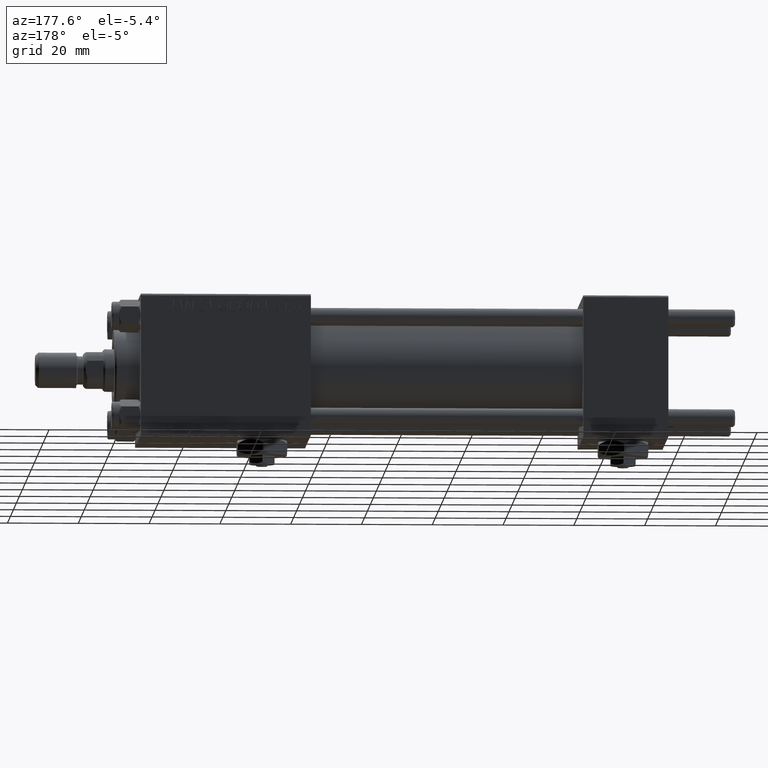
[diagram: clean part render]
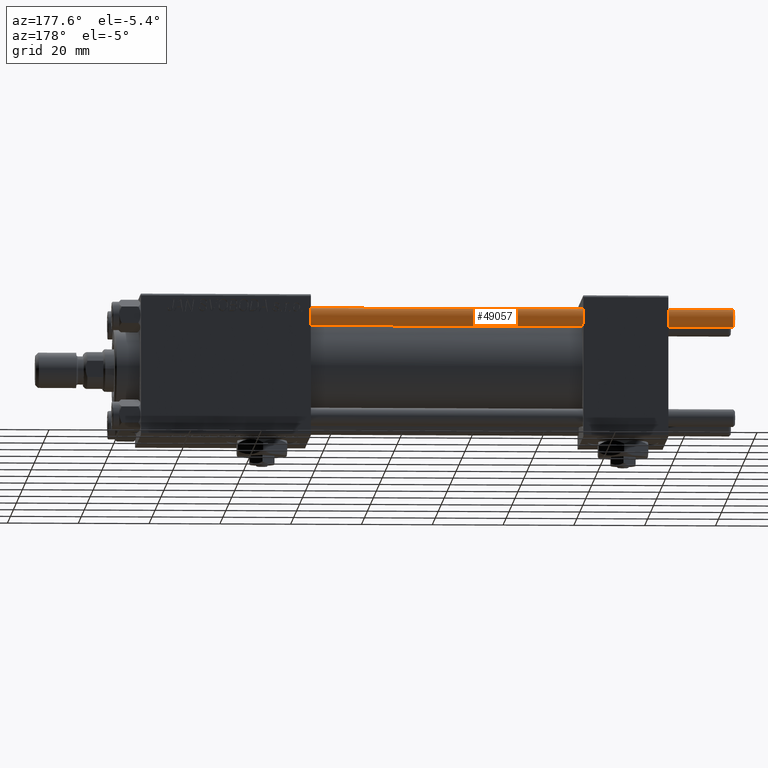
[diagram: same view with one face highlighted and labeled with its STEP entity id]
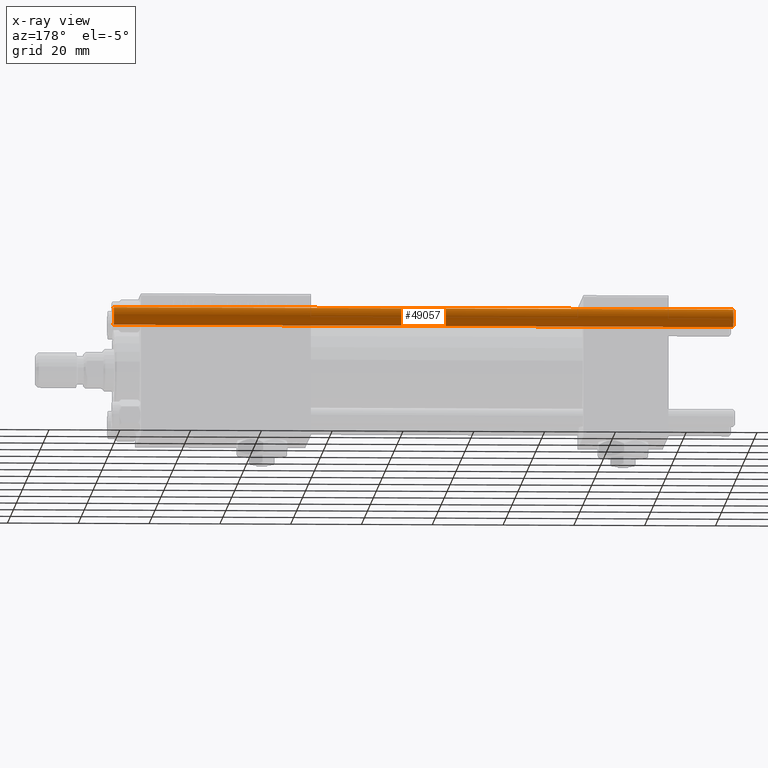
[diagram: x-ray of the same camera — body ghosted, the highlighted face saturated]
A machine part, auxiliary view. The second image highlights one B-rep face of the part: STEP entity #49057.
The next image is the same camera in x-ray: the body ghosted, the highlighted face saturated — about 0% of this face is hidden behind the body in this view.
In plain terms, the highlighted cylindrical surface (edge-blend (fillet) strip) has radius 2.5 mm, axis along (-1, -0, -0).
Its self-contained STEP definition (entity closure, byte-faithful):
#1452 = EDGE_CURVE ( 'NONE', #23607, #36612, #48513, .T. ) ;
#3957 = DIRECTION ( 'NONE',  ( -1.000000000000000000, 0.000000000000000000, 0.000000000000000000 ) ) ;
#7632 = ORIENTED_EDGE ( 'NONE', *, *, #44233, .T. ) ;
#9576 = LINE ( 'NONE', #18292, #18281 ) ;
#12871 = DIRECTION ( 'NONE',  ( 1.000000000000000000, 0.000000000000000000, 0.000000000000000000 ) ) ;
#16009 = DIRECTION ( 'NONE',  ( -0.000000000000000000, -0.000000000000000000, 1.000000000000000000 ) ) ;
#18281 = VECTOR ( 'NONE', #42858, 1000.000000000000000 ) ;
#18292 = CARTESIAN_POINT ( 'NONE',  ( -2.500000000000000000, 0.000000000000000000, 176.0000000000000000 ) ) ;
#18976 = CARTESIAN_POINT ( 'NONE',  ( 2.500000000000000000, 3.061616997868383141E-16, 176.0000000000000000 ) ) ;
#23545 = AXIS2_PLACEMENT_3D ( 'NONE', #48233, #16009, #24459 ) ;
#23607 = VERTEX_POINT ( 'NONE', #41003 ) ;
#24459 = DIRECTION ( 'NONE',  ( 1.000000000000000000, 0.000000000000000000, 0.000000000000000000 ) ) ;
#24542 = CARTESIAN_POINT ( 'NONE',  ( 2.500000000000000000, 3.061616997868383141E-16, 0.5000000000000281997 ) ) ;
#25607 = EDGE_CURVE ( 'NONE', #36612, #40506, #43822, .T. ) ;
#25725 = AXIS2_PLACEMENT_3D ( 'NONE', #37190, #29530, #12871 ) ;
#27005 = ORIENTED_EDGE ( 'NONE', *, *, #36437, .F. ) ;
#27368 = VECTOR ( 'NONE', #27428, 1000.000000000000000 ) ;
#27428 = DIRECTION ( 'NONE',  ( -0.000000000000000000, -0.000000000000000000, -1.000000000000000000 ) ) ;
#28021 = DIRECTION ( 'NONE',  ( -0.000000000000000000, -0.000000000000000000, -1.000000000000000000 ) ) ;
#29530 = DIRECTION ( 'NONE',  ( 0.000000000000000000, 0.000000000000000000, -1.000000000000000000 ) ) ;
#29955 = VERTEX_POINT ( 'NONE', #29982 ) ;
#29982 = CARTESIAN_POINT ( 'NONE',  ( -2.500000000000000000, 0.000000000000000000, 0.5000000000000281997 ) ) ;
#31792 = ORIENTED_EDGE ( 'NONE', *, *, #25607, .T. ) ;
#35948 = FACE_OUTER_BOUND ( 'NONE', #48684, .T. ) ;
#36437 = EDGE_CURVE ( 'NONE', #23607, #29955, #9576, .T. ) ;
#36612 = VERTEX_POINT ( 'NONE', #52078 ) ;
#36864 = ORIENTED_EDGE ( 'NONE', *, *, #1452, .T. ) ;
#37190 = CARTESIAN_POINT ( 'NONE',  ( 0.000000000000000000, 0.000000000000000000, 175.5000000000000000 ) ) ;
#38853 = AXIS2_PLACEMENT_3D ( 'NONE', #52050, #28021, #3957 ) ;
#40506 = VERTEX_POINT ( 'NONE', #24542 ) ;
#40682 = CYLINDRICAL_SURFACE ( 'NONE', #38853, 2.500000000000000000 ) ;
#41003 = CARTESIAN_POINT ( 'NONE',  ( -2.500000000000000000, 0.000000000000000000, 175.5000000000000000 ) ) ;
#42858 = DIRECTION ( 'NONE',  ( -0.000000000000000000, -0.000000000000000000, -1.000000000000000000 ) ) ;
#43822 = LINE ( 'NONE', #18976, #27368 ) ;
#44233 = EDGE_CURVE ( 'NONE', #40506, #29955, #49695, .T. ) ;
#48233 = CARTESIAN_POINT ( 'NONE',  ( 0.000000000000000000, 0.000000000000000000, 0.5000000000000281997 ) ) ;
#48513 = CIRCLE ( 'NONE', #25725, 2.500000000000000000 ) ;
#48684 = EDGE_LOOP ( 'NONE', ( #36864, #31792, #7632, #27005 ) ) ;
#49057 = ADVANCED_FACE ( 'NONE', ( #35948 ), #40682, .T. ) ;
#49695 = CIRCLE ( 'NONE', #23545, 2.500000000000000000 ) ;
#52050 = CARTESIAN_POINT ( 'NONE',  ( 0.000000000000000000, 0.000000000000000000, 176.0000000000000000 ) ) ;
#52078 = CARTESIAN_POINT ( 'NONE',  ( 2.500000000000000000, 3.061616997868383141E-16, 175.5000000000000000 ) ) ;